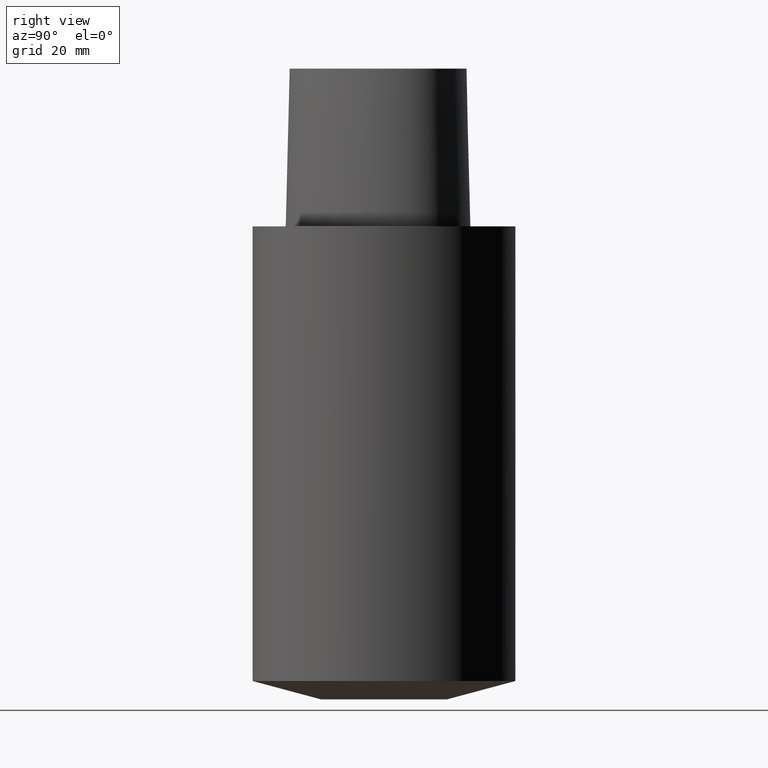
[diagram: clean part render]
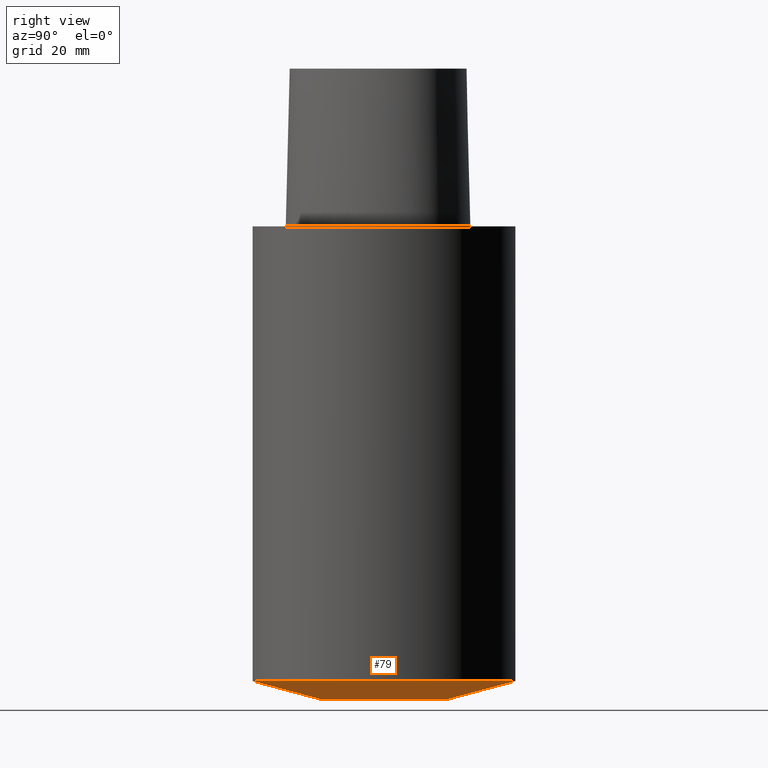
[diagram: same view with one face highlighted and labeled with its STEP entity id]
A machine part, right view. The second image highlights one B-rep face of the part: STEP entity #79.
In plain terms, the highlighted conical surface has half-angle 75 deg.
Its self-contained STEP definition (entity closure, byte-faithful):
#79=ADVANCED_FACE('',(#91,#92),#93,.T.);
#91=FACE_BOUND('',#489,.T.);
#92=FACE_BOUND('',#490,.T.);
#93=CONICAL_SURFACE('',#491,18.4950000005548,1.30899693937098);
#489=EDGE_LOOP('',(#512));
#490=EDGE_LOOP('',(#513));
#491=AXIS2_PLACEMENT_3D('',#514,#515,#516);
#512=ORIENTED_EDGE('',*,*,#527,.F.);
#513=ORIENTED_EDGE('',*,*,#526,.T.);
#514=CARTESIAN_POINT('',(5.40434611783776E-015,1.08086922356755E-014,-88.2596699979207));
#515=DIRECTION('',(-6.12323399573677E-017,-1.22464679914735E-016,1.0));
#516=DIRECTION('',(-1.23259516440783E-032,1.0,1.22464679914735E-016));
#526=EDGE_CURVE('',#535,#535,#536,.T.);
#527=EDGE_CURVE('',#537,#537,#538,.T.);
#535=VERTEX_POINT('',#692);
#536=CIRCLE('',#693,12.0000000011097);
#537=VERTEX_POINT('',#694);
#538=CIRCLE('',#695,24.99);
#692=CARTESIAN_POINT('',(5.51091059616309E-015,12.0000000011097,-90.0));
#693=AXIS2_PLACEMENT_3D('',#699,#700,#701);
#694=CARTESIAN_POINT('',(5.29778163951243E-015,24.99,-86.5193399958413));
#695=AXIS2_PLACEMENT_3D('',#702,#703,#704);
#699=CARTESIAN_POINT('',(5.51091059616309E-015,1.10218211923262E-014,-90.0));
#700=DIRECTION('',(-6.12323399573677E-017,-1.22464679914735E-016,1.0));
#701=DIRECTION('',(-1.23259516440783E-032,1.0,1.22464679914735E-016));
#702=CARTESIAN_POINT('',(5.29778163951243E-015,1.05955632790249E-014,-86.5193399958413));
#703=DIRECTION('',(-6.12323399573677E-017,-1.22464679914735E-016,1.0));
#704=DIRECTION('',(-1.23259516440783E-032,1.0,1.22464679914735E-016));